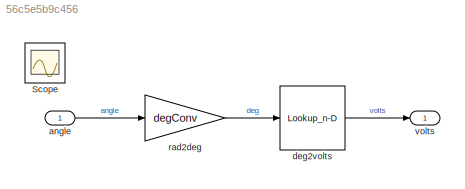
MODEL slx_56c5e5b9c456
KIND model
CONFIG AbsTol = auto
CONFIG EnableMultiTasking = on
CONFIG FixedStep = auto
CONFIG MaxStep = auto
CONFIG MinStep = auto
CONFIG PreLoadFcn = % Create parameters\ndegConv = 180/pi;\n\n% Create inputs\nt = linspace(0,10,101)'; \nu = linspace(0,pi/2,101)'; 
CONFIG RelTol = 1e-3
CONFIG SampleTimeConstraint = Unconstrained
CONFIG Solver = VariableStepAuto
CONFIG SolverName = VariableStepAuto
CONFIG StartTime = 0.0
CONFIG StopTime = 10.0
BLOCK [Scope] Scope
  Floating = off
  IOType = viewer
  NumInputPorts = 1
  Ports = []
  ScopeSpecificationString = Simulink.scopes.TimeScopeBlockCfg('CurrentConfiguration', extmgr.ConfigurationSet(extmgr.Configuration('Core','General UI',true),extmgr.Configuration('Core','Source UI',true),extmgr.Configuration('Sources','WiredSimulink',true,'DataLoggingMaxPoints','7500','DataLoggingSaveFormat','Array','DataLoggingLimitDataPoints',true,'DataLoggingDecimation','1'),extmgr.Configuration('Visuals','Time Domain',tru...<+2245ch>
BLOCK [Inport] angle
  IconDisplay = Port number
BLOCK [Lookup_n-D] deg2volts
  BreakpointsForDimension1 = [0 90]
  ExtrapMethod = Clip
  NumberOfTableDimensions = 1
  Ports = [1, 1]
  RndMeth = Simplest
  Table = [0.5 4.5]
BLOCK [Gain] rad2deg
  Gain = degConv
BLOCK [Outport] volts
  IconDisplay = Port number
LINE angle:1 -> rad2deg:1
LINE deg2volts:1 -> volts:1
LINE rad2deg:1 -> deg2volts:1
